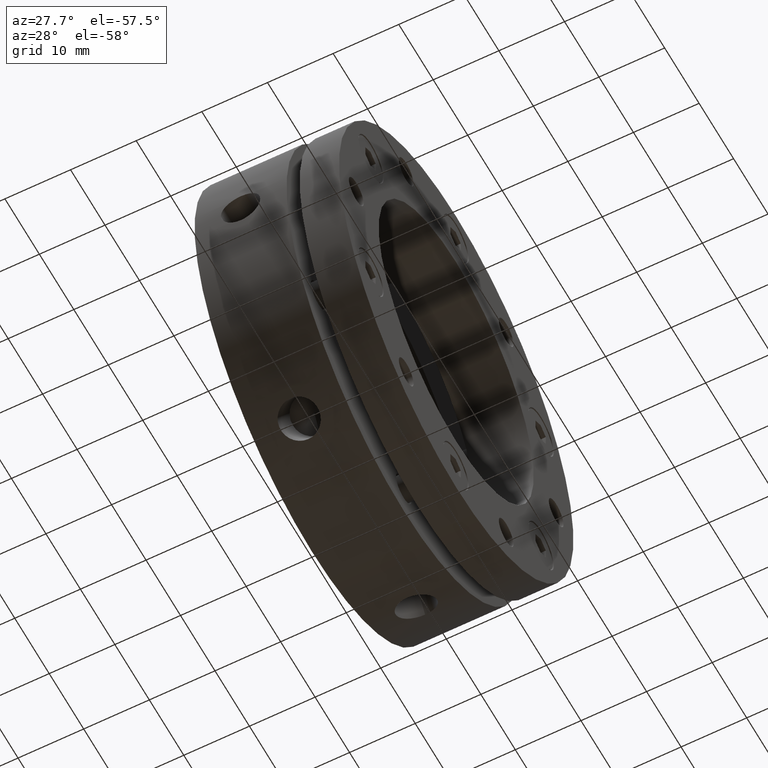
[diagram: clean part render]
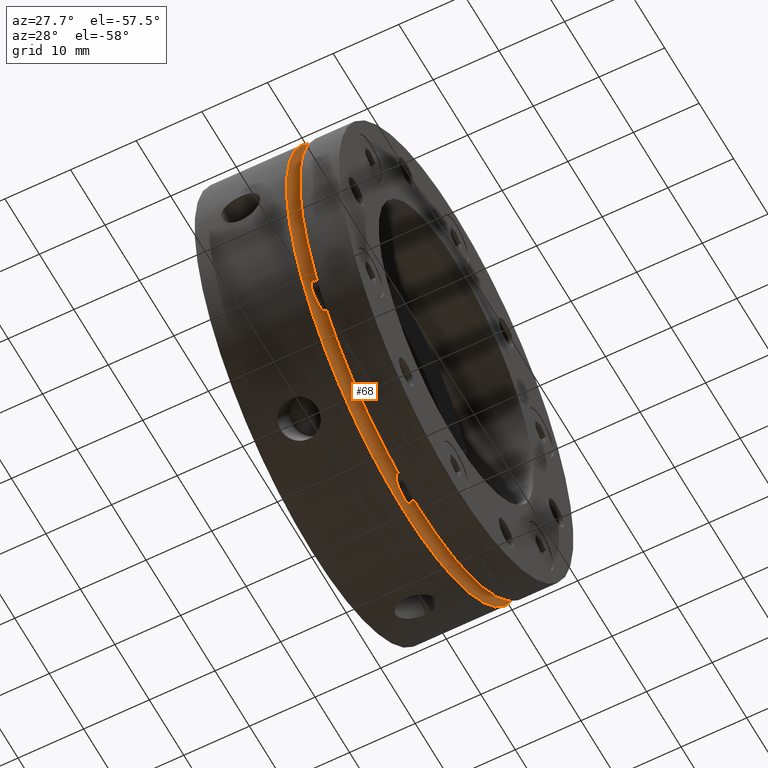
[diagram: same view with one face highlighted and labeled with its STEP entity id]
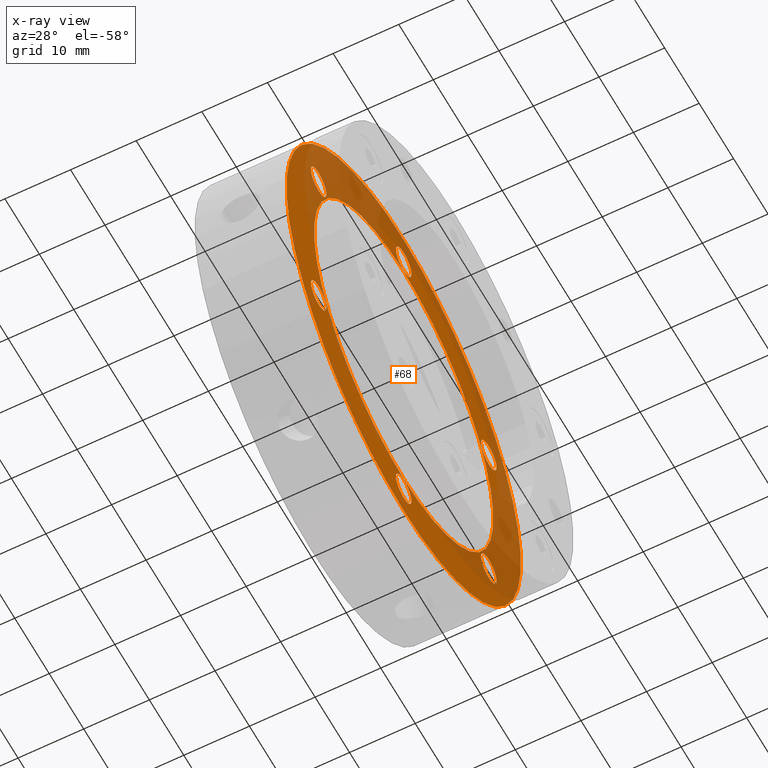
[diagram: x-ray of the same camera — body ghosted, the highlighted face saturated]
A machine part, auxiliary view. The second image highlights one B-rep face of the part: STEP entity #68.
The next image is the same camera in x-ray: the body ghosted, the highlighted face saturated — about 44% of this face is hidden behind the body in this view.
In plain terms, the highlighted planar face has unit normal (-1, 0, 0).
Its self-contained STEP definition (entity closure, byte-faithful):
#68 = ADVANCED_FACE ( 'NONE', ( #299, #307, #303, #301, #305, #308, #309, #310 ), #1451, .F. ) ;
#299 = FACE_BOUND ( 'NONE', #3688, .T. ) ;
#301 = FACE_BOUND ( 'NONE', #3689, .T. ) ;
#303 = FACE_BOUND ( 'NONE', #3675, .T. ) ;
#305 = FACE_BOUND ( 'NONE', #3668, .T. ) ;
#307 = FACE_BOUND ( 'NONE', #3676, .T. ) ;
#308 = FACE_BOUND ( 'NONE', #3667, .T. ) ;
#309 = FACE_BOUND ( 'NONE', #3666, .T. ) ;
#310 = FACE_OUTER_BOUND ( 'NONE', #3665, .T. ) ;
#430 = CIRCLE ( 'NONE', #1168, 26.00000000000001100 ) ;
#512 = CIRCLE ( 'NONE', #1981, 2.250000000000000400 ) ;
#515 = CIRCLE ( 'NONE', #1979, 26.00000000000001100 ) ;
#516 = CIRCLE ( 'NONE', #1980, 2.250000000000001800 ) ;
#517 = CIRCLE ( 'NONE', #1982, 2.250000000000000400 ) ;
#518 = CIRCLE ( 'NONE', #1983, 2.249999999999998700 ) ;
#519 = CIRCLE ( 'NONE', #1984, 2.249999999999998700 ) ;
#520 = CIRCLE ( 'NONE', #1985, 2.250000000000000400 ) ;
#636 = CIRCLE ( 'NONE', #2027, 34.00000000000000000 ) ;
#673 = CIRCLE ( 'NONE', #1725, 2.250000000000001800 ) ;
#697 = VERTEX_POINT ( 'NONE', #1601 ) ;
#698 = VERTEX_POINT ( 'NONE', #1602 ) ;
#701 = VERTEX_POINT ( 'NONE', #1605 ) ;
#702 = VERTEX_POINT ( 'NONE', #1606 ) ;
#705 = VERTEX_POINT ( 'NONE', #1609 ) ;
#706 = VERTEX_POINT ( 'NONE', #1610 ) ;
#738 = ORIENTED_EDGE ( 'NONE', *, *, #3605, .F. ) ;
#893 = ORIENTED_EDGE ( 'NONE', *, *, #1764, .F. ) ;
#894 = ORIENTED_EDGE ( 'NONE', *, *, #1043, .F. ) ;
#900 = ORIENTED_EDGE ( 'NONE', *, *, #3642, .F. ) ;
#902 = ORIENTED_EDGE ( 'NONE', *, *, #3650, .F. ) ;
#905 = ORIENTED_EDGE ( 'NONE', *, *, #2345, .F. ) ;
#911 = ORIENTED_EDGE ( 'NONE', *, *, #3628, .F. ) ;
#918 = ORIENTED_EDGE ( 'NONE', *, *, #1765, .F. ) ;
#921 = ORIENTED_EDGE ( 'NONE', *, *, #1768, .F. ) ;
#930 = ORIENTED_EDGE ( 'NONE', *, *, #1769, .F. ) ;
#932 = ORIENTED_EDGE ( 'NONE', *, *, #3621, .F. ) ;
#940 = ORIENTED_EDGE ( 'NONE', *, *, #1770, .F. ) ;
#948 = ORIENTED_EDGE ( 'NONE', *, *, #1767, .F. ) ;
#949 = ORIENTED_EDGE ( 'NONE', *, *, #3635, .F. ) ;
#956 = ORIENTED_EDGE ( 'NONE', *, *, #3611, .F. ) ;
#957 = ORIENTED_EDGE ( 'NONE', *, *, #1766, .F. ) ;
#1018 = VERTEX_POINT ( 'NONE', #2488 ) ;
#1020 = VERTEX_POINT ( 'NONE', #2490 ) ;
#1043 = EDGE_CURVE ( 'NONE', #4748, #4747, #430, .T. ) ;
#1168 = AXIS2_PLACEMENT_3D ( 'NONE', #2498, #2499, #2500 ) ;
#1447 = DIRECTION ( 'NONE',  ( -1.000000000000000000, 0.0000000000000000000, 0.0000000000000000000 ) ) ;
#1449 = CARTESIAN_POINT ( 'NONE',  ( 14.00000000000000000, 30.00000000000000700, 0.0000000000000000000 ) ) ;
#1451 = PLANE ( 'NONE',  #1939 ) ;
#1453 = DIRECTION ( 'NONE',  ( 0.0000000000000000000, 0.0000000000000000000, 1.000000000000000000 ) ) ;
#1601 = CARTESIAN_POINT ( 'NONE',  ( 14.00000000000000000, 24.68172400785652700, 11.99999999999998600 ) ) ;
#1602 = CARTESIAN_POINT ( 'NONE',  ( 14.00000000000000000, 24.68172400785652700, 16.49999999999998600 ) ) ;
#1605 = CARTESIAN_POINT ( 'NONE',  ( 14.00000000000000000, 24.68172400785650600, -16.50000000000001400 ) ) ;
#1606 = CARTESIAN_POINT ( 'NONE',  ( 14.00000000000000000, 24.68172400785650600, -12.00000000000001600 ) ) ;
#1609 = CARTESIAN_POINT ( 'NONE',  ( 14.00000000000000000, -4.440891999999999900E-015, -30.75000000000001400 ) ) ;
#1610 = CARTESIAN_POINT ( 'NONE',  ( 14.00000000000000000, -4.165346470191845000E-015, -26.25000000000001800 ) ) ;
#1725 = AXIS2_PLACEMENT_3D ( 'NONE', #3203, #3204, #3205 ) ;
#1728 = AXIS2_PLACEMENT_3D ( 'NONE', #3216, #3217, #3218 ) ;
#1733 = AXIS2_PLACEMENT_3D ( 'NONE', #3243, #3244, #3245 ) ;
#1737 = AXIS2_PLACEMENT_3D ( 'NONE', #3261, #3262, #3263 ) ;
#1741 = AXIS2_PLACEMENT_3D ( 'NONE', #3279, #3280, #3281 ) ;
#1743 = AXIS2_PLACEMENT_3D ( 'NONE', #3293, #3294, #3295 ) ;
#1747 = AXIS2_PLACEMENT_3D ( 'NONE', #3974, #3975, #3976 ) ;
#1764 = EDGE_CURVE ( 'NONE', #4747, #4748, #515, .T. ) ;
#1765 = EDGE_CURVE ( 'NONE', #4743, #4744, #516, .T. ) ;
#1766 = EDGE_CURVE ( 'NONE', #4739, #4740, #512, .T. ) ;
#1767 = EDGE_CURVE ( 'NONE', #4735, #4736, #517, .T. ) ;
#1768 = EDGE_CURVE ( 'NONE', #705, #706, #518, .T. ) ;
#1769 = EDGE_CURVE ( 'NONE', #701, #702, #519, .T. ) ;
#1770 = EDGE_CURVE ( 'NONE', #697, #698, #520, .T. ) ;
#1939 = AXIS2_PLACEMENT_3D ( 'NONE', #1449, #1447, #1453 ) ;
#1979 = AXIS2_PLACEMENT_3D ( 'NONE', #2639, #2640, #2641 ) ;
#1980 = AXIS2_PLACEMENT_3D ( 'NONE', #2642, #2643, #2644 ) ;
#1981 = AXIS2_PLACEMENT_3D ( 'NONE', #2645, #2646, #2647 ) ;
#1982 = AXIS2_PLACEMENT_3D ( 'NONE', #2648, #2649, #2650 ) ;
#1983 = AXIS2_PLACEMENT_3D ( 'NONE', #2651, #2652, #2653 ) ;
#1984 = AXIS2_PLACEMENT_3D ( 'NONE', #2654, #2655, #2656 ) ;
#1985 = AXIS2_PLACEMENT_3D ( 'NONE', #2657, #2658, #2659 ) ;
#2027 = AXIS2_PLACEMENT_3D ( 'NONE', #3085, #3086, #3087 ) ;
#2345 = EDGE_CURVE ( 'NONE', #1020, #1018, #636, .T. ) ;
#2488 = CARTESIAN_POINT ( 'NONE',  ( 14.00000000000000000, 4.163799117101000600E-015, 34.00000000000000000 ) ) ;
#2490 = CARTESIAN_POINT ( 'NONE',  ( 14.00000000000000000, 0.0000000000000000000, -34.00000000000000000 ) ) ;
#2498 = CARTESIAN_POINT ( 'NONE',  ( 14.00000000000000000, 0.0000000000000000000, 0.0000000000000000000 ) ) ;
#2499 = DIRECTION ( 'NONE',  ( 1.000000000000000000, -0.0000000000000000000, -0.0000000000000000000 ) ) ;
#2500 = DIRECTION ( 'NONE',  ( 0.0000000000000000000, 0.0000000000000000000, 1.000000000000000000 ) ) ;
#2639 = CARTESIAN_POINT ( 'NONE',  ( 14.00000000000000000, 0.0000000000000000000, 0.0000000000000000000 ) ) ;
#2640 = DIRECTION ( 'NONE',  ( 1.000000000000000000, -0.0000000000000000000, -0.0000000000000000000 ) ) ;
#2641 = DIRECTION ( 'NONE',  ( 0.0000000000000000000, 0.0000000000000000000, 1.000000000000000000 ) ) ;
#2642 = CARTESIAN_POINT ( 'NONE',  ( 14.00000000000000000, 0.0000000000000000000, 28.50000000000001100 ) ) ;
#2643 = DIRECTION ( 'NONE',  ( 1.000000000000000000, 0.0000000000000000000, 0.0000000000000000000 ) ) ;
#2644 = DIRECTION ( 'NONE',  ( 0.0000000000000000000, 0.0000000000000000000, -1.000000000000000000 ) ) ;
#2645 = CARTESIAN_POINT ( 'NONE',  ( 14.00000000000000000, -24.68172400785650900, 14.25000000000000700 ) ) ;
#2646 = DIRECTION ( 'NONE',  ( 1.000000000000000000, 0.0000000000000000000, 0.0000000000000000000 ) ) ;
#2647 = DIRECTION ( 'NONE',  ( 0.0000000000000000000, 0.0000000000000000000, -1.000000000000000000 ) ) ;
#2648 = CARTESIAN_POINT ( 'NONE',  ( 14.00000000000000000, -24.68172400785651300, -14.25000000000000400 ) ) ;
#2649 = DIRECTION ( 'NONE',  ( 1.000000000000000000, 0.0000000000000000000, 0.0000000000000000000 ) ) ;
#2650 = DIRECTION ( 'NONE',  ( 0.0000000000000000000, 0.0000000000000000000, -1.000000000000000000 ) ) ;
#2651 = CARTESIAN_POINT ( 'NONE',  ( 14.00000000000000000, -4.440891999999999900E-015, -28.50000000000001400 ) ) ;
#2652 = DIRECTION ( 'NONE',  ( 1.000000000000000000, 0.0000000000000000000, 0.0000000000000000000 ) ) ;
#2653 = DIRECTION ( 'NONE',  ( 0.0000000000000000000, 0.0000000000000000000, -1.000000000000000000 ) ) ;
#2654 = CARTESIAN_POINT ( 'NONE',  ( 14.00000000000000000, 24.68172400785650600, -14.25000000000001600 ) ) ;
#2655 = DIRECTION ( 'NONE',  ( 1.000000000000000000, 0.0000000000000000000, 0.0000000000000000000 ) ) ;
#2656 = DIRECTION ( 'NONE',  ( 0.0000000000000000000, 0.0000000000000000000, -1.000000000000000000 ) ) ;
#2657 = CARTESIAN_POINT ( 'NONE',  ( 14.00000000000000000, 24.68172400785652700, 14.24999999999998600 ) ) ;
#2658 = DIRECTION ( 'NONE',  ( 1.000000000000000000, 0.0000000000000000000, 0.0000000000000000000 ) ) ;
#2659 = DIRECTION ( 'NONE',  ( 0.0000000000000000000, 0.0000000000000000000, -1.000000000000000000 ) ) ;
#3085 = CARTESIAN_POINT ( 'NONE',  ( 14.00000000000000000, 0.0000000000000000000, 0.0000000000000000000 ) ) ;
#3086 = DIRECTION ( 'NONE',  ( -1.000000000000000000, -0.0000000000000000000, -0.0000000000000000000 ) ) ;
#3087 = DIRECTION ( 'NONE',  ( 0.0000000000000000000, 0.0000000000000000000, -1.000000000000000000 ) ) ;
#3203 = CARTESIAN_POINT ( 'NONE',  ( 14.00000000000000000, 0.0000000000000000000, 28.50000000000001100 ) ) ;
#3204 = DIRECTION ( 'NONE',  ( 1.000000000000000000, 0.0000000000000000000, 0.0000000000000000000 ) ) ;
#3205 = DIRECTION ( 'NONE',  ( 0.0000000000000000000, 0.0000000000000000000, -1.000000000000000000 ) ) ;
#3216 = CARTESIAN_POINT ( 'NONE',  ( 14.00000000000000000, -24.68172400785650900, 14.25000000000000700 ) ) ;
#3217 = DIRECTION ( 'NONE',  ( 1.000000000000000000, 0.0000000000000000000, 0.0000000000000000000 ) ) ;
#3218 = DIRECTION ( 'NONE',  ( 0.0000000000000000000, 0.0000000000000000000, -1.000000000000000000 ) ) ;
#3243 = CARTESIAN_POINT ( 'NONE',  ( 14.00000000000000000, -24.68172400785651300, -14.25000000000000400 ) ) ;
#3244 = DIRECTION ( 'NONE',  ( 1.000000000000000000, 0.0000000000000000000, 0.0000000000000000000 ) ) ;
#3245 = DIRECTION ( 'NONE',  ( 0.0000000000000000000, 0.0000000000000000000, -1.000000000000000000 ) ) ;
#3261 = CARTESIAN_POINT ( 'NONE',  ( 14.00000000000000000, -4.440891999999999900E-015, -28.50000000000001400 ) ) ;
#3262 = DIRECTION ( 'NONE',  ( 1.000000000000000000, 0.0000000000000000000, 0.0000000000000000000 ) ) ;
#3263 = DIRECTION ( 'NONE',  ( 0.0000000000000000000, 0.0000000000000000000, -1.000000000000000000 ) ) ;
#3279 = CARTESIAN_POINT ( 'NONE',  ( 14.00000000000000000, 24.68172400785650600, -14.25000000000001600 ) ) ;
#3280 = DIRECTION ( 'NONE',  ( 1.000000000000000000, 0.0000000000000000000, 0.0000000000000000000 ) ) ;
#3281 = DIRECTION ( 'NONE',  ( 0.0000000000000000000, 0.0000000000000000000, -1.000000000000000000 ) ) ;
#3293 = CARTESIAN_POINT ( 'NONE',  ( 14.00000000000000000, 24.68172400785652700, 14.24999999999998600 ) ) ;
#3294 = DIRECTION ( 'NONE',  ( 1.000000000000000000, 0.0000000000000000000, 0.0000000000000000000 ) ) ;
#3295 = DIRECTION ( 'NONE',  ( 0.0000000000000000000, 0.0000000000000000000, -1.000000000000000000 ) ) ;
#3605 = EDGE_CURVE ( 'NONE', #4744, #4743, #673, .T. ) ;
#3611 = EDGE_CURVE ( 'NONE', #4740, #4739, #3722, .T. ) ;
#3621 = EDGE_CURVE ( 'NONE', #4736, #4735, #3736, .T. ) ;
#3628 = EDGE_CURVE ( 'NONE', #706, #705, #3748, .T. ) ;
#3635 = EDGE_CURVE ( 'NONE', #702, #701, #3753, .T. ) ;
#3642 = EDGE_CURVE ( 'NONE', #698, #697, #3765, .T. ) ;
#3650 = EDGE_CURVE ( 'NONE', #1018, #1020, #3776, .T. ) ;
#3665 = EDGE_LOOP ( 'NONE', ( #905, #902 ) ) ;
#3666 = EDGE_LOOP ( 'NONE', ( #940, #900 ) ) ;
#3667 = EDGE_LOOP ( 'NONE', ( #930, #949 ) ) ;
#3668 = EDGE_LOOP ( 'NONE', ( #921, #911 ) ) ;
#3675 = EDGE_LOOP ( 'NONE', ( #957, #956 ) ) ;
#3676 = EDGE_LOOP ( 'NONE', ( #918, #738 ) ) ;
#3688 = EDGE_LOOP ( 'NONE', ( #893, #894 ) ) ;
#3689 = EDGE_LOOP ( 'NONE', ( #948, #932 ) ) ;
#3722 = CIRCLE ( 'NONE', #1728, 2.250000000000000400 ) ;
#3736 = CIRCLE ( 'NONE', #1733, 2.250000000000000400 ) ;
#3748 = CIRCLE ( 'NONE', #1737, 2.249999999999998700 ) ;
#3753 = CIRCLE ( 'NONE', #1741, 2.249999999999998700 ) ;
#3765 = CIRCLE ( 'NONE', #1743, 2.250000000000000400 ) ;
#3776 = CIRCLE ( 'NONE', #1747, 34.00000000000000000 ) ;
#3974 = CARTESIAN_POINT ( 'NONE',  ( 14.00000000000000000, 0.0000000000000000000, 0.0000000000000000000 ) ) ;
#3975 = DIRECTION ( 'NONE',  ( -1.000000000000000000, -0.0000000000000000000, -0.0000000000000000000 ) ) ;
#3976 = DIRECTION ( 'NONE',  ( 0.0000000000000000000, 0.0000000000000000000, -1.000000000000000000 ) ) ;
#4327 = CARTESIAN_POINT ( 'NONE',  ( 14.00000000000000000, -24.68172400785650900, 12.00000000000000700 ) ) ;
#4330 = CARTESIAN_POINT ( 'NONE',  ( 14.00000000000000000, -24.68172400785651300, -16.50000000000000400 ) ) ;
#4336 = CARTESIAN_POINT ( 'NONE',  ( 14.00000000000000000, -24.68172400785651300, -12.00000000000000400 ) ) ;
#4338 = CARTESIAN_POINT ( 'NONE',  ( 14.00000000000000000, -24.68172400785650900, 16.50000000000000700 ) ) ;
#4340 = CARTESIAN_POINT ( 'NONE',  ( 14.00000000000000000, 0.0000000000000000000, 26.25000000000001100 ) ) ;
#4341 = CARTESIAN_POINT ( 'NONE',  ( 14.00000000000000000, 2.755455298081542800E-016, 30.75000000000001400 ) ) ;
#4344 = CARTESIAN_POINT ( 'NONE',  ( 14.00000000000000000, 0.0000000000000000000, 26.00000000000001100 ) ) ;
#4345 = CARTESIAN_POINT ( 'NONE',  ( 14.00000000000000000, 3.184081677783119400E-015, -26.00000000000001100 ) ) ;
#4735 = VERTEX_POINT ( 'NONE', #4330 ) ;
#4736 = VERTEX_POINT ( 'NONE', #4336 ) ;
#4739 = VERTEX_POINT ( 'NONE', #4327 ) ;
#4740 = VERTEX_POINT ( 'NONE', #4338 ) ;
#4743 = VERTEX_POINT ( 'NONE', #4340 ) ;
#4744 = VERTEX_POINT ( 'NONE', #4341 ) ;
#4747 = VERTEX_POINT ( 'NONE', #4344 ) ;
#4748 = VERTEX_POINT ( 'NONE', #4345 ) ;